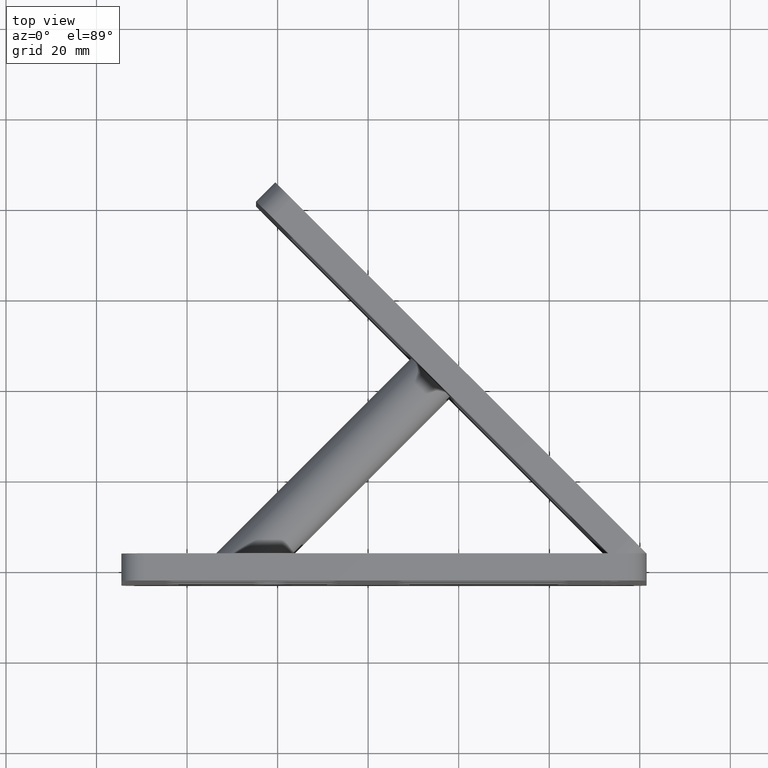
[diagram: clean part render]
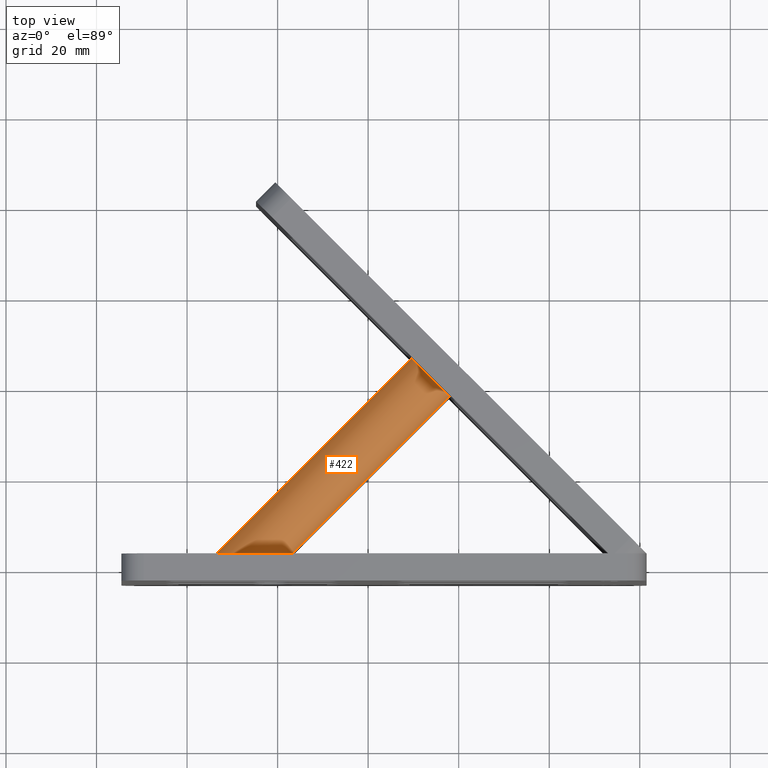
[diagram: same view with one face highlighted and labeled with its STEP entity id]
A machine part, top view. The second image highlights one B-rep face of the part: STEP entity #422.
In plain terms, the highlighted cylindrical surface (edge-blend (fillet) strip) has radius 6 mm, axis along (0.7071, 0.7071, 0).
Its self-contained STEP definition (entity closure, byte-faithful):
#397 = CARTESIAN_POINT ( 'NONE',  ( 9.527651582788003300, 46.48706704297335100, 11.99999999999986000 ) ) ;
#422 = ADVANCED_FACE ( 'NONE', ( #1432 ), #5810, .T. ) ;
#501 = CARTESIAN_POINT ( 'NONE',  ( -16.98885271170756500, 3.000000000000224700, 11.99999999999987700 ) ) ;
#1184 = CARTESIAN_POINT ( 'NONE',  ( -16.98885271170756500, 3.000000000000224700, 11.99999999999987700 ) ) ;
#1250 = DIRECTION ( 'NONE',  ( 0.7071067811865438000, -0.7071067811865513500, 4.625929269271428500E-015 ) ) ;
#1432 = FACE_OUTER_BOUND ( 'NONE', #6128, .T. ) ;
#1438 = AXIS2_PLACEMENT_3D ( 'NONE', #6726, #4005, #1250 ) ;
#1503 =( BOUNDED_CURVE ( )  B_SPLINE_CURVE ( 3, ( #6088, #5592, #3397, #1184 ),
 .UNSPECIFIED., .F., .F. ) 
 B_SPLINE_CURVE_WITH_KNOTS ( ( 4, 4 ),
 ( 3.141592653589785100, 6.283185307179586200 ),
 .UNSPECIFIED. ) 
 CURVE ( )  GEOMETRIC_REPRESENTATION_ITEM ( )  RATIONAL_B_SPLINE_CURVE ( ( 1.000000000000000000, 0.3333333333333307100, 0.3333333333333307100, 1.000000000000000000 ) ) 
 REPRESENTATION_ITEM ( '' )  );
#1536 = EDGE_CURVE ( 'NONE', #6235, #6676, #4959, .T. ) ;
#1625 = CIRCLE ( 'NONE', #4891, 6.000000000000073700 ) ;
#2004 = EDGE_CURVE ( 'NONE', #3939, #2133, #6252, .T. ) ;
#2133 = VERTEX_POINT ( 'NONE', #397 ) ;
#2525 = DIRECTION ( 'NONE',  ( 0.7071067811865454600, 0.7071067811865494600, 8.074451954557265400E-016 ) ) ;
#2790 = ORIENTED_EDGE ( 'NONE', *, *, #2004, .F. ) ;
#2809 = VECTOR ( 'NONE', #3827, 1000.000000000000000 ) ;
#3178 = EDGE_CURVE ( 'NONE', #3939, #6235, #1503, .T. ) ;
#3397 = CARTESIAN_POINT ( 'NONE',  ( -16.98885271170776800, 3.000000000000238000, 24.00000000000023100 ) ) ;
#3827 = DIRECTION ( 'NONE',  ( 0.7071067811865454600, 0.7071067811865494600, 8.074451954557265400E-016 ) ) ;
#3939 = VERTEX_POINT ( 'NONE', #4164 ) ;
#4005 = DIRECTION ( 'NONE',  ( 0.7071067811865455700, 0.7071067811865495700, 8.074451954557266300E-016 ) ) ;
#4164 = CARTESIAN_POINT ( 'NONE',  ( -33.95941546018480000, 3.000000000000301100, 11.99999999999981000 ) ) ;
#4319 = ORIENTED_EDGE ( 'NONE', *, *, #3178, .T. ) ;
#4759 = ORIENTED_EDGE ( 'NONE', *, *, #5431, .F. ) ;
#4790 = VECTOR ( 'NONE', #2525, 1000.000000000000000 ) ;
#4891 = AXIS2_PLACEMENT_3D ( 'NONE', #6478, #5339, #5863 ) ;
#4959 = LINE ( 'NONE', #6662, #2809 ) ;
#5272 = CARTESIAN_POINT ( 'NONE',  ( 10.94186514516113100, 47.90128060534648600, 11.99999999999986100 ) ) ;
#5339 = DIRECTION ( 'NONE',  ( 0.7071067811865454600, 0.7071067811865494600, 8.074451954557265400E-016 ) ) ;
#5431 = EDGE_CURVE ( 'NONE', #2133, #6676, #1625, .T. ) ;
#5484 = CARTESIAN_POINT ( 'NONE',  ( 18.01293295702670200, 38.00178566873470500, 11.99999999999991700 ) ) ;
#5592 = CARTESIAN_POINT ( 'NONE',  ( -33.95941546018501400, 3.000000000000360200, 24.00000000000011700 ) ) ;
#5810 = CYLINDRICAL_SURFACE ( 'NONE', #1438, 6.000000000000073700 ) ;
#5863 = DIRECTION ( 'NONE',  ( 0.7071067811865438000, -0.7071067811865513500, 4.625929269271428500E-015 ) ) ;
#6088 = CARTESIAN_POINT ( 'NONE',  ( -33.95941546018480000, 3.000000000000301100, 11.99999999999981000 ) ) ;
#6121 = ORIENTED_EDGE ( 'NONE', *, *, #1536, .T. ) ;
#6128 = EDGE_LOOP ( 'NONE', ( #2790, #4319, #6121, #4759 ) ) ;
#6235 = VERTEX_POINT ( 'NONE', #501 ) ;
#6252 = LINE ( 'NONE', #5272, #4790 ) ;
#6478 = CARTESIAN_POINT ( 'NONE',  ( 13.77029226990734200, 42.24442635585403800, 11.99999999999992700 ) ) ;
#6662 = CARTESIAN_POINT ( 'NONE',  ( 19.42714651939976300, 39.41599923110776200, 11.99999999999991800 ) ) ;
#6676 = VERTEX_POINT ( 'NONE', #5484 ) ;
#6726 = CARTESIAN_POINT ( 'NONE',  ( 15.18450583228044700, 43.65863991822712400, 11.99999999999989200 ) ) ;